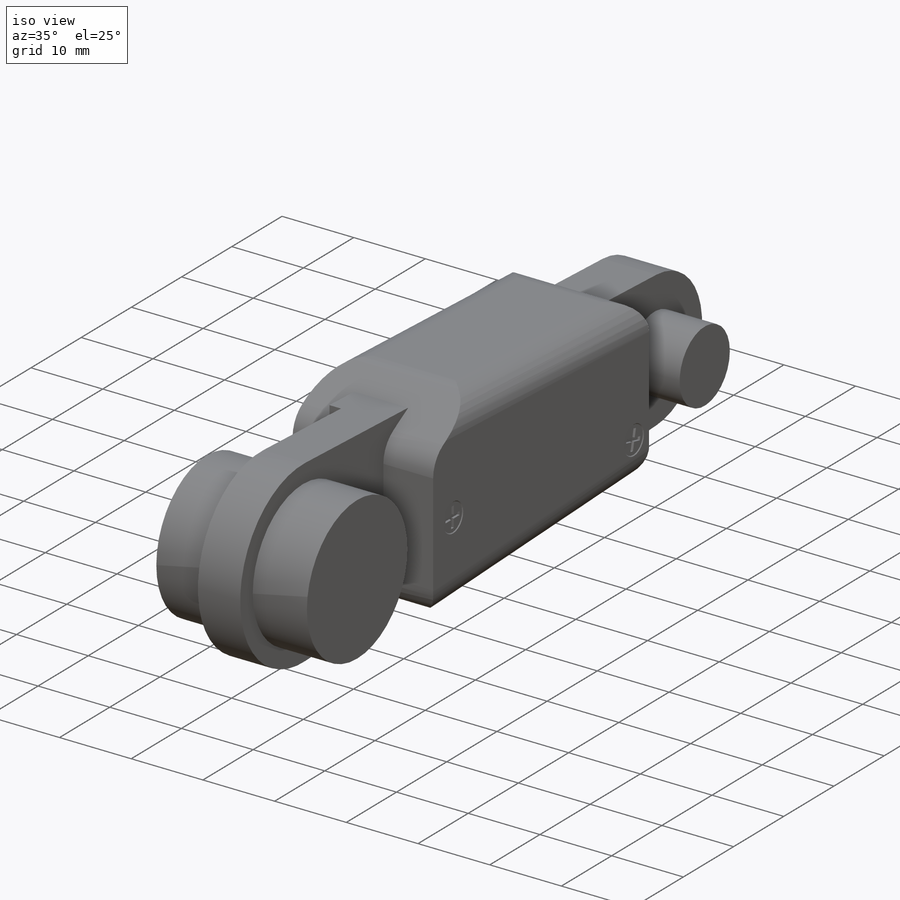
[diagram: iso view]
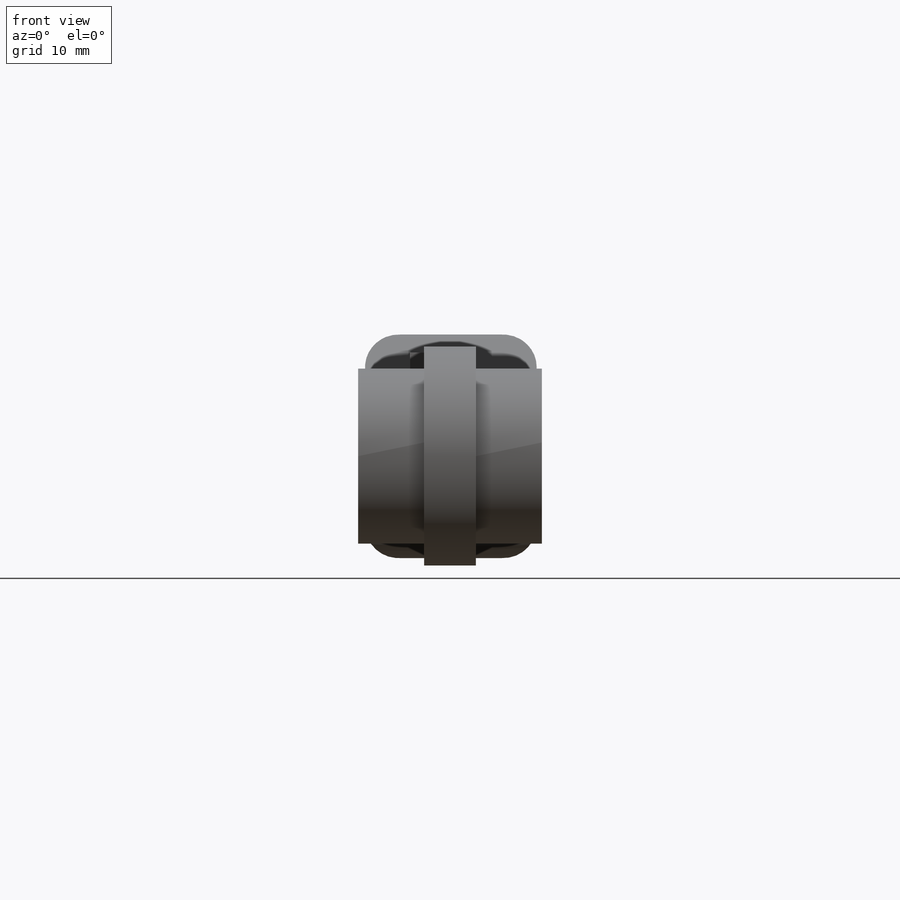
[diagram: front view]
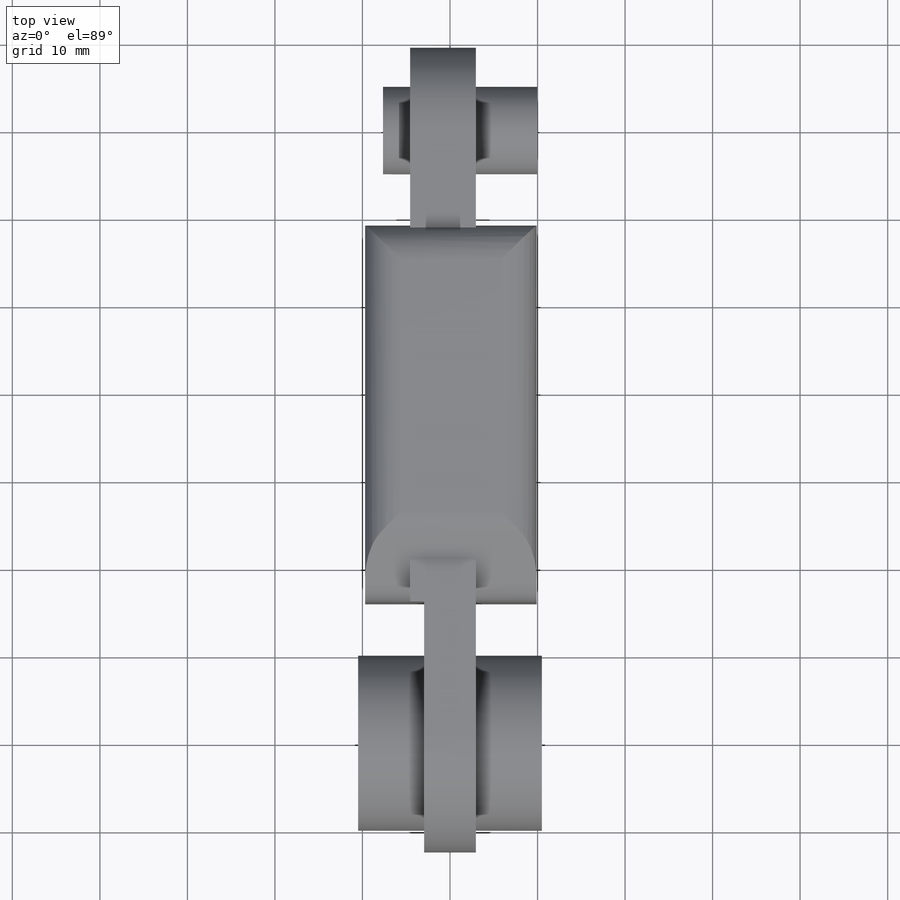
[diagram: top view]
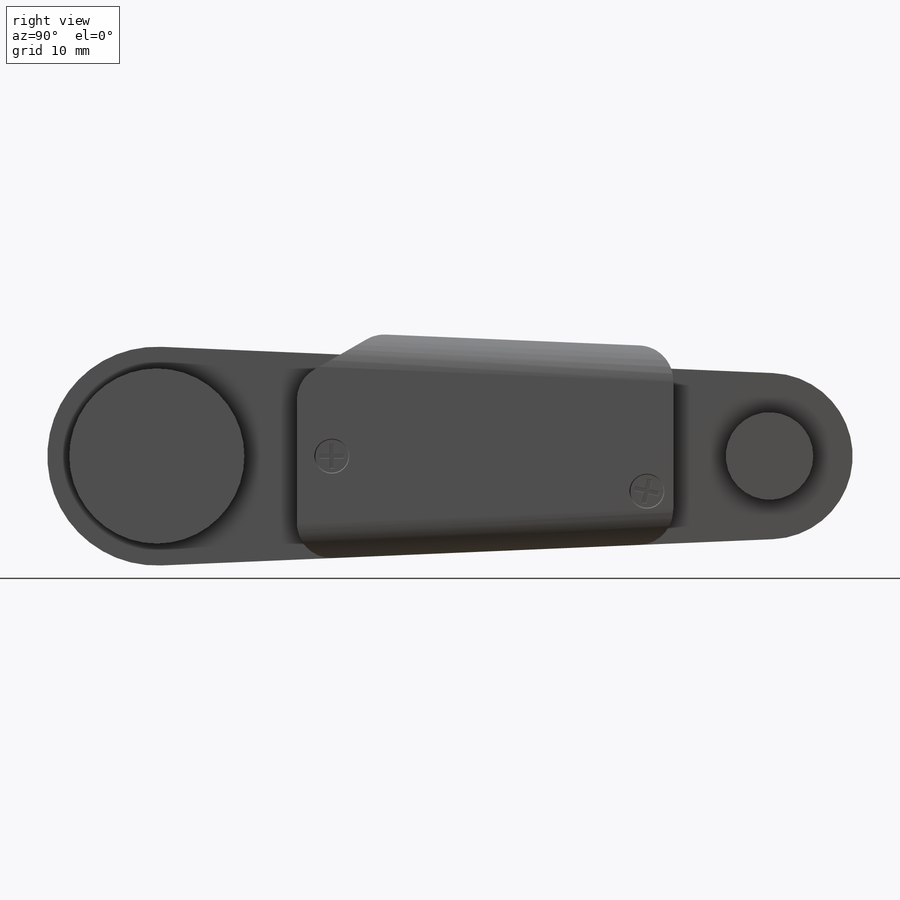
[diagram: right view]
SOLIDWORKS PART (.sldprt)
format: sldprt  version: not decoded by parser v0  size: 570,368 bytes
history: native  units: mm
features: sketch x8, extrude x5, cut_extrude x3, fillet x2, material x1 (+11 scaffold rows collapsed)
feature tree (30):
  scaffold x11  (default folders/planes/origin — collapsed)
  material  "Material <not specified>"
  sketch  "Sketch1"  dims[D1=12.5mm D2=9.5mm D3=70.0mm]
  extrude  "Boss-Extrude1"  Depth=5.9mm
  sketch  "Sketch2"  dims[D1=16.0mm]
  extrude  "Boss-Extrude2"  Depth=1.6mm
  sketch  "Sketch3"  dims[D1=20.0mm]
  extrude  "Boss-Extrude3"  Depth=21mm
  fillet  "Fillet1"  Radius=4mm
  sketch  "Sketch4"  dims[c1.D1=43.0mm c1.D2=2.5mm c1.D3=~19.780627mm c2.D3=60.0deg c2.D4=9.0mm]
  extrude  "Boss-Extrude4"  Depth=5.15mm
  sketch  "Sketch6"  dims[D1=0.01mm D2=0.01mm D3=2.0mm D4=1.0mm]
  cut_extrude  "Cut-Extrude1"  Depth=1.5mm
  fillet  "Fillet2"  Radius=4mm
  sketch  "Sketch7"  dims[D1=10.0mm]
  extrude  "Boss-Extrude5"  Depth=7.02mm
  sketch  "Sketch8"  dims[D4=4.0mm D5=4.0mm D1=4.0mm D2=36.0mm D3=3.0mm]
  cut_extrude  "Cut-Extrude2"  Depth=0.1mm
  sketch  "Sketch9"  dims[D1=0.5mm D2=0.25mm D3=1.4mm D4=4.0]
  cut_extrude  "Cut-Extrude3"  Depth=0.3mm
decode coverage: 18 of 18 modeling features carry decoded parameters
note: ~ marks probable driven/reference dimensions
note: suppression state not decoded; provenance and decode notes live in map.json
